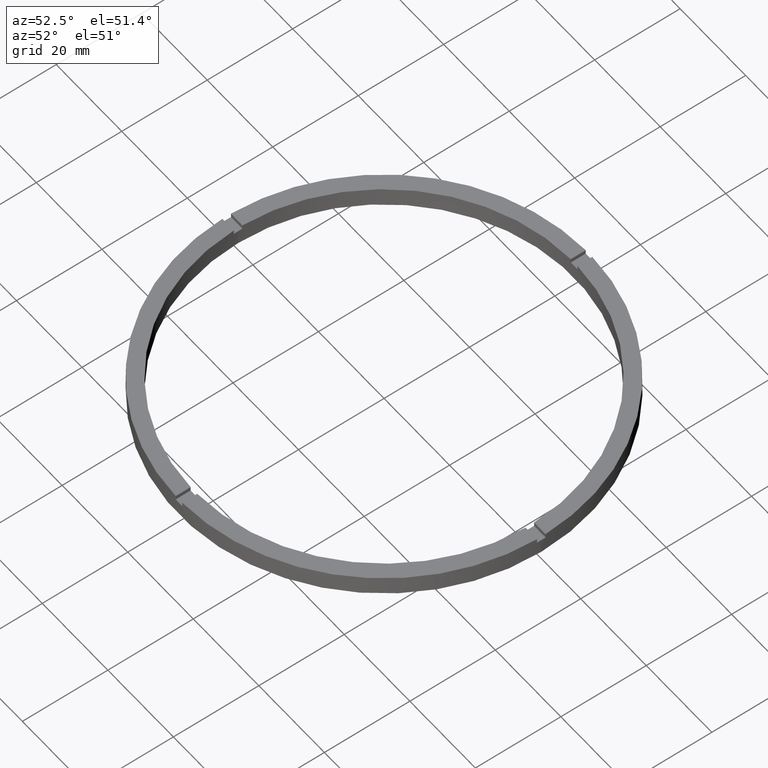
[diagram: clean part render]
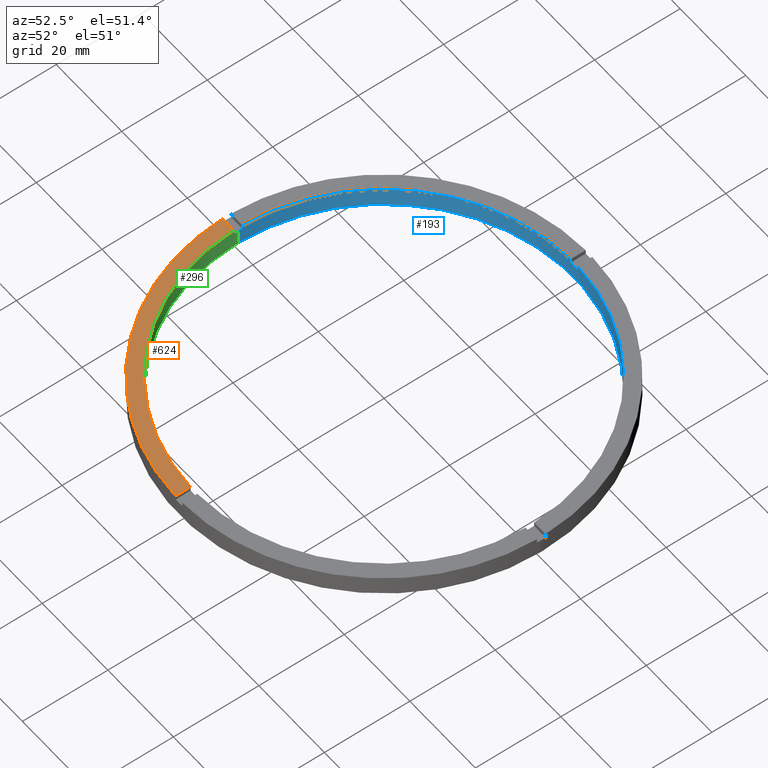
[diagram: same view with three faces highlighted in distinct colors, each labeled with its STEP entity id]
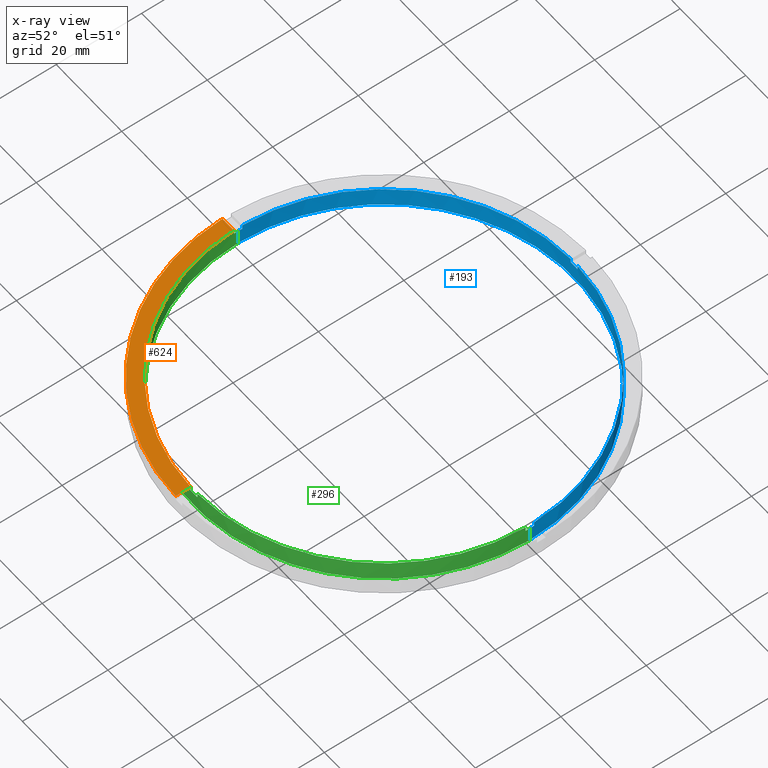
[diagram: x-ray of the same camera — body ghosted, the three highlighted faces saturated]
A machine part, auxiliary view with three faces highlighted in distinct colors.
The next image is the same camera in x-ray (body ghosted, the three faces saturated) — at least one of them is partly hidden behind the body in this view.
Their STEP definitions:

[orange] entity #624 — the highlighted planar face has unit normal (0, 0, 1).
#30 = VERTEX_POINT ( 'NONE', #751 ) ;
#51 = CARTESIAN_POINT ( 'NONE',  ( -1.000000000000157208, -47.98958220280731268, 4.500000000000000000 ) ) ;
#91 = PLANE ( 'NONE',  #667 ) ;
#99 = LINE ( 'NONE', #115, #374 ) ;
#113 = CIRCLE ( 'NONE', #639, 48.00000000000000711 ) ;
#115 = CARTESIAN_POINT ( 'NONE',  ( -1.000000000000158540, -38.00000000000018474, 4.500000000000000000 ) ) ;
#125 = LINE ( 'NONE', #224, #660 ) ;
#137 = CARTESIAN_POINT ( 'NONE',  ( 0.000000000000000000, 0.000000000000000000, 4.500000000000000000 ) ) ;
#177 = EDGE_CURVE ( 'NONE', #429, #462, #113, .T. ) ;
#224 = CARTESIAN_POINT ( 'NONE',  ( -38.00000000000019185, -1.000000000000028866, 4.500000000000000000 ) ) ;
#241 = EDGE_CURVE ( 'NONE', #429, #30, #125, .T. ) ;
#278 = VERTEX_POINT ( 'NONE', #507 ) ;
#290 = DIRECTION ( 'NONE',  ( 1.000000000000000000, 0.000000000000000000, -0.000000000000000000 ) ) ;
#298 = DIRECTION ( 'NONE',  ( 0.000000000000000000, 0.000000000000000000, 1.000000000000000000 ) ) ;
#360 = EDGE_CURVE ( 'NONE', #278, #462, #99, .T. ) ;
#374 = VECTOR ( 'NONE', #599, 1000.000000000000000 ) ;
#387 = CARTESIAN_POINT ( 'NONE',  ( 0.000000000000000000, 0.000000000000000000, 4.500000000000000000 ) ) ;
#391 = ORIENTED_EDGE ( 'NONE', *, *, #241, .F. ) ;
#397 = ORIENTED_EDGE ( 'NONE', *, *, #177, .T. ) ;
#429 = VERTEX_POINT ( 'NONE', #728 ) ;
#438 = CARTESIAN_POINT ( 'NONE',  ( 0.000000000000000000, 0.000000000000000000, 4.500000000000000000 ) ) ;
#456 = AXIS2_PLACEMENT_3D ( 'NONE', #387, #529, #600 ) ;
#461 = EDGE_LOOP ( 'NONE', ( #473, #483, #391, #397 ) ) ;
#462 = VERTEX_POINT ( 'NONE', #51 ) ;
#473 = ORIENTED_EDGE ( 'NONE', *, *, #360, .F. ) ;
#483 = ORIENTED_EDGE ( 'NONE', *, *, #737, .F. ) ;
#507 = CARTESIAN_POINT ( 'NONE',  ( -1.000000000000157652, -44.48876262608345655, 4.500000000000000000 ) ) ;
#529 = DIRECTION ( 'NONE',  ( 0.000000000000000000, 0.000000000000000000, 1.000000000000000000 ) ) ;
#582 = DIRECTION ( 'NONE',  ( 0.000000000000000000, 0.000000000000000000, 1.000000000000000000 ) ) ;
#594 = DIRECTION ( 'NONE',  ( 1.000000000000000000, 0.000000000000000000, 0.000000000000000000 ) ) ;
#596 = CIRCLE ( 'NONE', #456, 44.50000000000000711 ) ;
#599 = DIRECTION ( 'NONE',  ( 1.301042606982605074E-16, -1.000000000000000000, 0.000000000000000000 ) ) ;
#600 = DIRECTION ( 'NONE',  ( 1.000000000000000000, 0.000000000000000000, 0.000000000000000000 ) ) ;
#624 = ADVANCED_FACE ( 'NONE', ( #763 ), #91, .T. ) ;
#639 = AXIS2_PLACEMENT_3D ( 'NONE', #438, #582, #594 ) ;
#660 = VECTOR ( 'NONE', #690, 1000.000000000000000 ) ;
#667 = AXIS2_PLACEMENT_3D ( 'NONE', #137, #298, #290 ) ;
#690 = DIRECTION ( 'NONE',  ( 1.000000000000000000, 1.951563910473907735E-16, -0.000000000000000000 ) ) ;
#728 = CARTESIAN_POINT ( 'NONE',  ( -47.98958220280731268, -1.000000000000030864, 4.500000000000000000 ) ) ;
#737 = EDGE_CURVE ( 'NONE', #30, #278, #596, .T. ) ;
#751 = CARTESIAN_POINT ( 'NONE',  ( -44.48876262608345655, -1.000000000000030198, 4.500000000000000000 ) ) ;
#763 = FACE_OUTER_BOUND ( 'NONE', #461, .T. ) ;

[blue] entity #193 — the highlighted cylindrical surface (partial cylindrical patch) has radius 44.5 mm, axis along (-0, -0, -1).
#10 = CARTESIAN_POINT ( 'NONE',  ( 0.000000000000000000, 0.000000000000000000, 4.500000000000000000 ) ) ;
#18 = VERTEX_POINT ( 'NONE', #692 ) ;
#21 = EDGE_CURVE ( 'NONE', #555, #523, #159, .T. ) ;
#53 = CARTESIAN_POINT ( 'NONE',  ( -1.000000000000026423, 44.48876262608345655, 4.500000000000000000 ) ) ;
#54 = DIRECTION ( 'NONE',  ( 0.000000000000000000, 0.000000000000000000, 1.000000000000000000 ) ) ;
#56 = EDGE_CURVE ( 'NONE', #729, #18, #445, .T. ) ;
#66 = AXIS2_PLACEMENT_3D ( 'NONE', #153, #676, #228 ) ;
#69 = CARTESIAN_POINT ( 'NONE',  ( 44.48876262608346366, 0.9999999999998443467, 4.500000000000000000 ) ) ;
#75 = EDGE_CURVE ( 'NONE', #165, #482, #181, .T. ) ;
#76 = DIRECTION ( 'NONE',  ( -0.000000000000000000, -0.000000000000000000, -1.000000000000000000 ) ) ;
#83 = VECTOR ( 'NONE', #435, 1000.000000000000000 ) ;
#86 = CARTESIAN_POINT ( 'NONE',  ( -44.48876262608345655, 0.9999999999999699130, 4.500000000000000000 ) ) ;
#88 = DIRECTION ( 'NONE',  ( -0.000000000000000000, -0.000000000000000000, -1.000000000000000000 ) ) ;
#92 = DIRECTION ( 'NONE',  ( 1.000000000000000000, 0.000000000000000000, 0.000000000000000000 ) ) ;
#100 = EDGE_CURVE ( 'NONE', #18, #252, #665, .T. ) ;
#108 = LINE ( 'NONE', #335, #83 ) ;
#130 = DIRECTION ( 'NONE',  ( -1.000000000000000000, 0.000000000000000000, 0.000000000000000000 ) ) ;
#140 = DIRECTION ( 'NONE',  ( -0.000000000000000000, -0.000000000000000000, -1.000000000000000000 ) ) ;
#141 = EDGE_LOOP ( 'NONE', ( #223, #167, #178, #453, #514, #150, #478, #762, #464, #217, #733, #752 ) ) ;
#150 = ORIENTED_EDGE ( 'NONE', *, *, #578, .T. ) ;
#153 = CARTESIAN_POINT ( 'NONE',  ( 0.000000000000000000, 0.000000000000000000, 0.000000000000000000 ) ) ;
#159 = LINE ( 'NONE', #53, #161 ) ;
#161 = VECTOR ( 'NONE', #140, 1000.000000000000000 ) ;
#162 = DIRECTION ( 'NONE',  ( -0.000000000000000000, -0.000000000000000000, -1.000000000000000000 ) ) ;
#165 = VERTEX_POINT ( 'NONE', #370 ) ;
#167 = ORIENTED_EDGE ( 'NONE', *, *, #723, .T. ) ;
#178 = ORIENTED_EDGE ( 'NONE', *, *, #282, .F. ) ;
#181 = CIRCLE ( 'NONE', #287, 44.50000000000000711 ) ;
#193 = ADVANCED_FACE ( 'NONE', ( #659 ), #392, .F. ) ;
#201 = VERTEX_POINT ( 'NONE', #86 ) ;
#206 = CARTESIAN_POINT ( 'NONE',  ( -1.000000000000026423, 44.48876262608345655, 4.500000000000000000 ) ) ;
#213 = CARTESIAN_POINT ( 'NONE',  ( 44.48876262608346366, 0.9999999999998443467, 3.499999999999999556 ) ) ;
#214 = DIRECTION ( 'NONE',  ( 0.000000000000000000, 0.000000000000000000, 1.000000000000000000 ) ) ;
#217 = ORIENTED_EDGE ( 'NONE', *, *, #584, .T. ) ;
#220 = CARTESIAN_POINT ( 'NONE',  ( 0.000000000000000000, 0.000000000000000000, 4.500000000000000000 ) ) ;
#223 = ORIENTED_EDGE ( 'NONE', *, *, #56, .F. ) ;
#228 = DIRECTION ( 'NONE',  ( 1.000000000000000000, 0.000000000000000000, 0.000000000000000000 ) ) ;
#239 = CIRCLE ( 'NONE', #416, 44.50000000000000711 ) ;
#242 = DIRECTION ( 'NONE',  ( -0.000000000000000000, -0.000000000000000000, -1.000000000000000000 ) ) ;
#243 = VECTOR ( 'NONE', #214, 1000.000000000000000 ) ;
#252 = VERTEX_POINT ( 'NONE', #650 ) ;
#253 = VECTOR ( 'NONE', #88, 1000.000000000000000 ) ;
#262 = CIRCLE ( 'NONE', #675, 44.50000000000000711 ) ;
#270 = LINE ( 'NONE', #711, #253 ) ;
#282 = EDGE_CURVE ( 'NONE', #165, #706, #357, .T. ) ;
#287 = AXIS2_PLACEMENT_3D ( 'NONE', #220, #671, #494 ) ;
#291 = VERTEX_POINT ( 'NONE', #673 ) ;
#294 = DIRECTION ( 'NONE',  ( 1.000000000000000000, 0.000000000000000000, 0.000000000000000000 ) ) ;
#328 = AXIS2_PLACEMENT_3D ( 'NONE', #10, #76, #130 ) ;
#335 = CARTESIAN_POINT ( 'NONE',  ( 0.9999999999999735767, 44.48876262608345655, 4.500000000000000000 ) ) ;
#346 = CARTESIAN_POINT ( 'NONE',  ( 0.000000000000000000, 0.000000000000000000, 3.499999999999999556 ) ) ;
#348 = DIRECTION ( 'NONE',  ( 0.000000000000000000, -0.000000000000000000, 1.000000000000000000 ) ) ;
#357 = LINE ( 'NONE', #69, #631 ) ;
#366 = CARTESIAN_POINT ( 'NONE',  ( 44.50000000000000711, 5.449678256205721981E-15, 4.500000000000000000 ) ) ;
#370 = CARTESIAN_POINT ( 'NONE',  ( 44.48876262608346366, 0.9999999999998443467, 4.500000000000000000 ) ) ;
#373 = EDGE_CURVE ( 'NONE', #687, #482, #108, .T. ) ;
#392 = CYLINDRICAL_SURFACE ( 'NONE', #328, 44.50000000000000711 ) ;
#398 = CARTESIAN_POINT ( 'NONE',  ( -44.48876262608345655, 0.9999999999999699130, 4.500000000000000000 ) ) ;
#400 = DIRECTION ( 'NONE',  ( 0.000000000000000000, 0.000000000000000000, 1.000000000000000000 ) ) ;
#409 = CARTESIAN_POINT ( 'NONE',  ( 0.000000000000000000, 0.000000000000000000, 4.500000000000000000 ) ) ;
#416 = AXIS2_PLACEMENT_3D ( 'NONE', #409, #648, #705 ) ;
#435 = DIRECTION ( 'NONE',  ( 0.000000000000000000, 0.000000000000000000, 1.000000000000000000 ) ) ;
#445 = LINE ( 'NONE', #366, #734 ) ;
#451 = CARTESIAN_POINT ( 'NONE',  ( 44.50000000000000711, 5.449678256205721981E-15, 3.499999999999999556 ) ) ;
#453 = ORIENTED_EDGE ( 'NONE', *, *, #75, .T. ) ;
#464 = ORIENTED_EDGE ( 'NONE', *, *, #591, .F. ) ;
#477 = EDGE_CURVE ( 'NONE', #491, #252, #270, .T. ) ;
#478 = ORIENTED_EDGE ( 'NONE', *, *, #21, .F. ) ;
#482 = VERTEX_POINT ( 'NONE', #617 ) ;
#491 = VERTEX_POINT ( 'NONE', #781 ) ;
#494 = DIRECTION ( 'NONE',  ( 1.000000000000000000, 0.000000000000000000, 0.000000000000000000 ) ) ;
#509 = CIRCLE ( 'NONE', #551, 44.50000000000000711 ) ;
#514 = ORIENTED_EDGE ( 'NONE', *, *, #373, .F. ) ;
#523 = VERTEX_POINT ( 'NONE', #608 ) ;
#547 = CARTESIAN_POINT ( 'NONE',  ( 0.9999999999999735767, 44.48876262608345655, 3.499999999999999556 ) ) ;
#551 = AXIS2_PLACEMENT_3D ( 'NONE', #765, #348, #694 ) ;
#555 = VERTEX_POINT ( 'NONE', #206 ) ;
#578 = EDGE_CURVE ( 'NONE', #687, #523, #509, .T. ) ;
#584 = EDGE_CURVE ( 'NONE', #291, #491, #262, .T. ) ;
#590 = AXIS2_PLACEMENT_3D ( 'NONE', #346, #400, #294 ) ;
#591 = EDGE_CURVE ( 'NONE', #291, #201, #770, .T. ) ;
#608 = CARTESIAN_POINT ( 'NONE',  ( -1.000000000000026423, 44.48876262608345655, 3.499999999999999556 ) ) ;
#617 = CARTESIAN_POINT ( 'NONE',  ( 0.9999999999999735767, 44.48876262608345655, 4.500000000000000000 ) ) ;
#631 = VECTOR ( 'NONE', #242, 1000.000000000000000 ) ;
#648 = DIRECTION ( 'NONE',  ( 0.000000000000000000, 0.000000000000000000, 1.000000000000000000 ) ) ;
#650 = CARTESIAN_POINT ( 'NONE',  ( -44.50000000000000711, 0.000000000000000000, 0.000000000000000000 ) ) ;
#659 = FACE_OUTER_BOUND ( 'NONE', #141, .T. ) ;
#665 = CIRCLE ( 'NONE', #66, 44.50000000000000711 ) ;
#669 = CARTESIAN_POINT ( 'NONE',  ( 0.000000000000000000, 0.000000000000000000, 3.499999999999999556 ) ) ;
#671 = DIRECTION ( 'NONE',  ( 0.000000000000000000, 0.000000000000000000, 1.000000000000000000 ) ) ;
#673 = CARTESIAN_POINT ( 'NONE',  ( -44.48876262608345655, 0.9999999999999699130, 3.499999999999999556 ) ) ;
#675 = AXIS2_PLACEMENT_3D ( 'NONE', #669, #54, #92 ) ;
#676 = DIRECTION ( 'NONE',  ( 0.000000000000000000, 0.000000000000000000, 1.000000000000000000 ) ) ;
#687 = VERTEX_POINT ( 'NONE', #547 ) ;
#689 = EDGE_CURVE ( 'NONE', #555, #201, #239, .T. ) ;
#692 = CARTESIAN_POINT ( 'NONE',  ( 44.50000000000000711, 5.449678256205721981E-15, 0.000000000000000000 ) ) ;
#694 = DIRECTION ( 'NONE',  ( 1.000000000000000000, 0.000000000000000000, 0.000000000000000000 ) ) ;
#705 = DIRECTION ( 'NONE',  ( 1.000000000000000000, 0.000000000000000000, 0.000000000000000000 ) ) ;
#706 = VERTEX_POINT ( 'NONE', #213 ) ;
#711 = CARTESIAN_POINT ( 'NONE',  ( -44.50000000000000711, 0.000000000000000000, 4.500000000000000000 ) ) ;
#723 = EDGE_CURVE ( 'NONE', #729, #706, #777, .T. ) ;
#729 = VERTEX_POINT ( 'NONE', #451 ) ;
#733 = ORIENTED_EDGE ( 'NONE', *, *, #477, .T. ) ;
#734 = VECTOR ( 'NONE', #162, 1000.000000000000000 ) ;
#752 = ORIENTED_EDGE ( 'NONE', *, *, #100, .F. ) ;
#762 = ORIENTED_EDGE ( 'NONE', *, *, #689, .T. ) ;
#765 = CARTESIAN_POINT ( 'NONE',  ( 0.000000000000000000, 0.000000000000000000, 3.499999999999999556 ) ) ;
#770 = LINE ( 'NONE', #398, #243 ) ;
#777 = CIRCLE ( 'NONE', #590, 44.50000000000000711 ) ;
#781 = CARTESIAN_POINT ( 'NONE',  ( -44.50000000000000711, 0.000000000000000000, 3.499999999999999556 ) ) ;

[green] entity #296 — the highlighted cylindrical surface (partial cylindrical patch) has radius 44.5 mm, axis along (-0, -0, -1).
#4 = VECTOR ( 'NONE', #209, 1000.000000000000000 ) ;
#13 = ORIENTED_EDGE ( 'NONE', *, *, #40, .T. ) ;
#18 = VERTEX_POINT ( 'NONE', #692 ) ;
#20 = DIRECTION ( 'NONE',  ( 0.000000000000000000, 0.000000000000000000, 1.000000000000000000 ) ) ;
#29 = CARTESIAN_POINT ( 'NONE',  ( 0.9999999999998423483, -44.48876262608346366, 3.499999999999999556 ) ) ;
#30 = VERTEX_POINT ( 'NONE', #751 ) ;
#38 = CARTESIAN_POINT ( 'NONE',  ( 0.000000000000000000, 0.000000000000000000, 3.499999999999999556 ) ) ;
#39 = AXIS2_PLACEMENT_3D ( 'NONE', #643, #611, #653 ) ;
#40 = EDGE_CURVE ( 'NONE', #215, #184, #443, .T. ) ;
#56 = EDGE_CURVE ( 'NONE', #729, #18, #445, .T. ) ;
#85 = VECTOR ( 'NONE', #574, 1000.000000000000000 ) ;
#88 = DIRECTION ( 'NONE',  ( -0.000000000000000000, -0.000000000000000000, -1.000000000000000000 ) ) ;
#90 = AXIS2_PLACEMENT_3D ( 'NONE', #230, #317, #500 ) ;
#93 = CARTESIAN_POINT ( 'NONE',  ( 0.000000000000000000, 0.000000000000000000, 0.000000000000000000 ) ) ;
#95 = CARTESIAN_POINT ( 'NONE',  ( 0.9999999999998423483, -44.48876262608346366, 4.500000000000000000 ) ) ;
#114 = AXIS2_PLACEMENT_3D ( 'NONE', #670, #722, #367 ) ;
#132 = DIRECTION ( 'NONE',  ( -0.000000000000000000, 0.000000000000000000, 1.000000000000000000 ) ) ;
#143 = AXIS2_PLACEMENT_3D ( 'NONE', #732, #430, #747 ) ;
#145 = DIRECTION ( 'NONE',  ( 1.000000000000000000, 0.000000000000000000, 0.000000000000000000 ) ) ;
#162 = DIRECTION ( 'NONE',  ( -0.000000000000000000, -0.000000000000000000, -1.000000000000000000 ) ) ;
#171 = EDGE_CURVE ( 'NONE', #491, #559, #663, .T. ) ;
#184 = VERTEX_POINT ( 'NONE', #29 ) ;
#198 = ORIENTED_EDGE ( 'NONE', *, *, #748, .F. ) ;
#209 = DIRECTION ( 'NONE',  ( -0.000000000000000000, -0.000000000000000000, -1.000000000000000000 ) ) ;
#215 = VERTEX_POINT ( 'NONE', #661 ) ;
#221 = CARTESIAN_POINT ( 'NONE',  ( 44.48876262608345655, -1.000000000000155653, 4.500000000000000000 ) ) ;
#230 = CARTESIAN_POINT ( 'NONE',  ( 0.000000000000000000, 0.000000000000000000, 4.500000000000000000 ) ) ;
#232 = AXIS2_PLACEMENT_3D ( 'NONE', #93, #415, #428 ) ;
#237 = ORIENTED_EDGE ( 'NONE', *, *, #737, .T. ) ;
#252 = VERTEX_POINT ( 'NONE', #650 ) ;
#253 = VECTOR ( 'NONE', #88, 1000.000000000000000 ) ;
#267 = EDGE_CURVE ( 'NONE', #252, #18, #378, .T. ) ;
#270 = LINE ( 'NONE', #711, #253 ) ;
#271 = ORIENTED_EDGE ( 'NONE', *, *, #618, .F. ) ;
#278 = VERTEX_POINT ( 'NONE', #507 ) ;
#288 = CARTESIAN_POINT ( 'NONE',  ( -44.48876262608345655, -1.000000000000030198, 3.499999999999999556 ) ) ;
#296 = ADVANCED_FACE ( 'NONE', ( #625 ), #371, .F. ) ;
#312 = LINE ( 'NONE', #338, #318 ) ;
#314 = DIRECTION ( 'NONE',  ( -0.000000000000000000, -0.000000000000000000, -1.000000000000000000 ) ) ;
#315 = EDGE_CURVE ( 'NONE', #496, #506, #651, .T. ) ;
#317 = DIRECTION ( 'NONE',  ( 0.000000000000000000, 0.000000000000000000, 1.000000000000000000 ) ) ;
#318 = VECTOR ( 'NONE', #20, 1000.000000000000000 ) ;
#329 = CARTESIAN_POINT ( 'NONE',  ( 44.48876262608345655, -1.000000000000155653, 4.500000000000000000 ) ) ;
#338 = CARTESIAN_POINT ( 'NONE',  ( -1.000000000000157652, -44.48876262608345655, 4.500000000000000000 ) ) ;
#366 = CARTESIAN_POINT ( 'NONE',  ( 44.50000000000000711, 5.449678256205721981E-15, 4.500000000000000000 ) ) ;
#367 = DIRECTION ( 'NONE',  ( -1.000000000000000000, 0.000000000000000000, 0.000000000000000000 ) ) ;
#371 = CYLINDRICAL_SURFACE ( 'NONE', #114, 44.50000000000000711 ) ;
#378 = CIRCLE ( 'NONE', #232, 44.50000000000000711 ) ;
#387 = CARTESIAN_POINT ( 'NONE',  ( 0.000000000000000000, 0.000000000000000000, 4.500000000000000000 ) ) ;
#405 = CARTESIAN_POINT ( 'NONE',  ( -44.48876262608345655, -1.000000000000030198, 4.500000000000000000 ) ) ;
#406 = EDGE_CURVE ( 'NONE', #709, #506, #512, .T. ) ;
#415 = DIRECTION ( 'NONE',  ( 0.000000000000000000, 0.000000000000000000, 1.000000000000000000 ) ) ;
#428 = DIRECTION ( 'NONE',  ( 1.000000000000000000, 0.000000000000000000, 0.000000000000000000 ) ) ;
#430 = DIRECTION ( 'NONE',  ( 0.000000000000000000, 0.000000000000000000, 1.000000000000000000 ) ) ;
#431 = ORIENTED_EDGE ( 'NONE', *, *, #517, .F. ) ;
#439 = ORIENTED_EDGE ( 'NONE', *, *, #56, .T. ) ;
#443 = CIRCLE ( 'NONE', #741, 44.50000000000000711 ) ;
#445 = LINE ( 'NONE', #366, #734 ) ;
#451 = CARTESIAN_POINT ( 'NONE',  ( 44.50000000000000711, 5.449678256205721981E-15, 3.499999999999999556 ) ) ;
#456 = AXIS2_PLACEMENT_3D ( 'NONE', #387, #529, #600 ) ;
#457 = ORIENTED_EDGE ( 'NONE', *, *, #315, .F. ) ;
#465 = CARTESIAN_POINT ( 'NONE',  ( 44.48876262608345655, -1.000000000000155653, 3.499999999999999556 ) ) ;
#471 = CARTESIAN_POINT ( 'NONE',  ( 0.9999999999998423483, -44.48876262608346366, 4.500000000000000000 ) ) ;
#477 = EDGE_CURVE ( 'NONE', #491, #252, #270, .T. ) ;
#491 = VERTEX_POINT ( 'NONE', #781 ) ;
#496 = VERTEX_POINT ( 'NONE', #465 ) ;
#500 = DIRECTION ( 'NONE',  ( 1.000000000000000000, 0.000000000000000000, 0.000000000000000000 ) ) ;
#501 = ORIENTED_EDGE ( 'NONE', *, *, #267, .F. ) ;
#506 = VERTEX_POINT ( 'NONE', #221 ) ;
#507 = CARTESIAN_POINT ( 'NONE',  ( -1.000000000000157652, -44.48876262608345655, 4.500000000000000000 ) ) ;
#512 = CIRCLE ( 'NONE', #90, 44.50000000000000711 ) ;
#517 = EDGE_CURVE ( 'NONE', #709, #184, #783, .T. ) ;
#527 = ORIENTED_EDGE ( 'NONE', *, *, #477, .F. ) ;
#529 = DIRECTION ( 'NONE',  ( 0.000000000000000000, 0.000000000000000000, 1.000000000000000000 ) ) ;
#537 = ORIENTED_EDGE ( 'NONE', *, *, #171, .T. ) ;
#543 = LINE ( 'NONE', #405, #4 ) ;
#559 = VERTEX_POINT ( 'NONE', #288 ) ;
#574 = DIRECTION ( 'NONE',  ( 0.000000000000000000, 0.000000000000000000, 1.000000000000000000 ) ) ;
#596 = CIRCLE ( 'NONE', #456, 44.50000000000000711 ) ;
#600 = DIRECTION ( 'NONE',  ( 1.000000000000000000, 0.000000000000000000, 0.000000000000000000 ) ) ;
#611 = DIRECTION ( 'NONE',  ( 0.000000000000000000, 0.000000000000000000, 1.000000000000000000 ) ) ;
#618 = EDGE_CURVE ( 'NONE', #30, #559, #543, .T. ) ;
#625 = FACE_OUTER_BOUND ( 'NONE', #702, .T. ) ;
#643 = CARTESIAN_POINT ( 'NONE',  ( 0.000000000000000000, 0.000000000000000000, 3.499999999999999556 ) ) ;
#650 = CARTESIAN_POINT ( 'NONE',  ( -44.50000000000000711, 0.000000000000000000, 0.000000000000000000 ) ) ;
#651 = LINE ( 'NONE', #329, #85 ) ;
#652 = EDGE_CURVE ( 'NONE', #496, #729, #755, .T. ) ;
#653 = DIRECTION ( 'NONE',  ( 1.000000000000000000, 0.000000000000000000, 0.000000000000000000 ) ) ;
#661 = CARTESIAN_POINT ( 'NONE',  ( -1.000000000000157652, -44.48876262608345655, 3.499999999999999556 ) ) ;
#663 = CIRCLE ( 'NONE', #143, 44.50000000000000711 ) ;
#670 = CARTESIAN_POINT ( 'NONE',  ( 0.000000000000000000, 0.000000000000000000, 4.500000000000000000 ) ) ;
#692 = CARTESIAN_POINT ( 'NONE',  ( 44.50000000000000711, 5.449678256205721981E-15, 0.000000000000000000 ) ) ;
#702 = EDGE_LOOP ( 'NONE', ( #710, #439, #501, #527, #537, #271, #237, #198, #13, #431, #768, #457 ) ) ;
#709 = VERTEX_POINT ( 'NONE', #95 ) ;
#710 = ORIENTED_EDGE ( 'NONE', *, *, #652, .T. ) ;
#711 = CARTESIAN_POINT ( 'NONE',  ( -44.50000000000000711, 0.000000000000000000, 4.500000000000000000 ) ) ;
#722 = DIRECTION ( 'NONE',  ( -0.000000000000000000, -0.000000000000000000, -1.000000000000000000 ) ) ;
#729 = VERTEX_POINT ( 'NONE', #451 ) ;
#732 = CARTESIAN_POINT ( 'NONE',  ( 0.000000000000000000, 0.000000000000000000, 3.499999999999999556 ) ) ;
#734 = VECTOR ( 'NONE', #162, 1000.000000000000000 ) ;
#737 = EDGE_CURVE ( 'NONE', #30, #278, #596, .T. ) ;
#741 = AXIS2_PLACEMENT_3D ( 'NONE', #38, #132, #145 ) ;
#747 = DIRECTION ( 'NONE',  ( 1.000000000000000000, 0.000000000000000000, 0.000000000000000000 ) ) ;
#748 = EDGE_CURVE ( 'NONE', #215, #278, #312, .T. ) ;
#751 = CARTESIAN_POINT ( 'NONE',  ( -44.48876262608345655, -1.000000000000030198, 4.500000000000000000 ) ) ;
#755 = CIRCLE ( 'NONE', #39, 44.50000000000000711 ) ;
#767 = VECTOR ( 'NONE', #314, 1000.000000000000000 ) ;
#768 = ORIENTED_EDGE ( 'NONE', *, *, #406, .T. ) ;
#781 = CARTESIAN_POINT ( 'NONE',  ( -44.50000000000000711, 0.000000000000000000, 3.499999999999999556 ) ) ;
#783 = LINE ( 'NONE', #471, #767 ) ;